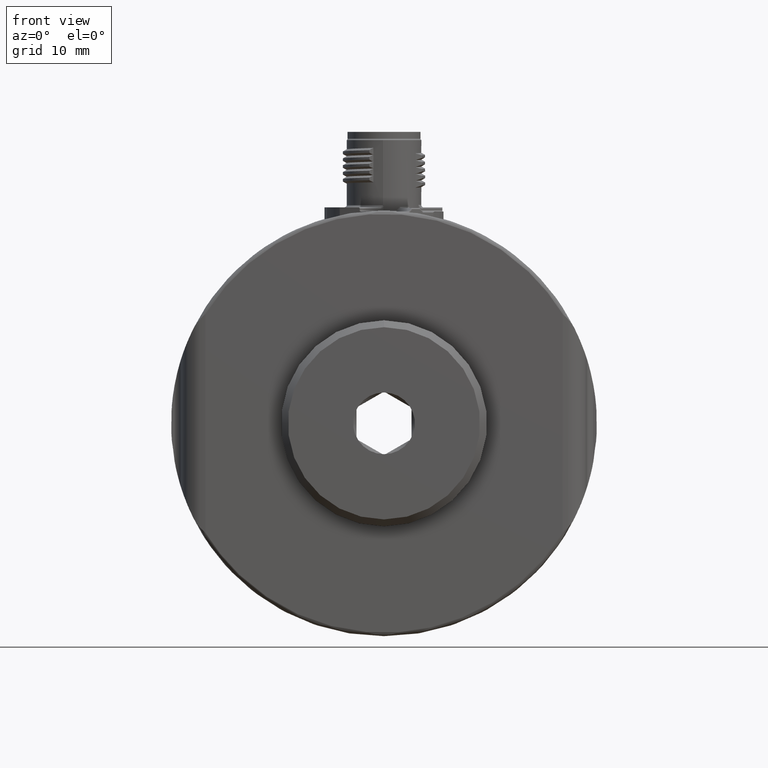
[diagram: clean part render]
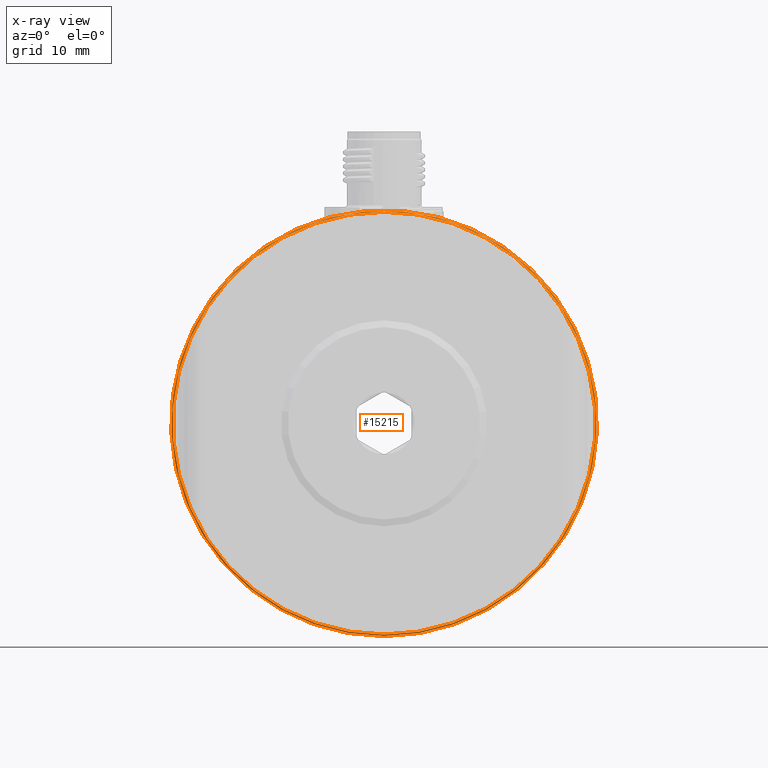
[diagram: x-ray — body ghosted, one internal face saturated and labeled with its STEP entity id]
A machine part, front view, then the same camera in x-ray: the body is ghosted and one INTERNAL B-rep face — a face not visible from any outside direction — is saturated and labeled: STEP entity #15215.
In plain terms, the highlighted conical surface has half-angle 45 deg.
Its self-contained STEP definition (entity closure, byte-faithful):
#304 = CONICAL_SURFACE ( 'NONE', #15305, 31.00000000000000000, 0.7853981633974396193 ) ;
#468 = DIRECTION ( 'NONE',  ( -3.333316502533546444E-16, 1.000000000000000000, 5.517171690293078260E-17 ) ) ;
#572 = ORIENTED_EDGE ( 'NONE', *, *, #5956, .F. ) ;
#1269 = DIRECTION ( 'NONE',  ( -5.551115123125780237E-17, 0.000000000000000000, -1.000000000000000000 ) ) ;
#1348 = EDGE_LOOP ( 'NONE', ( #572 ) ) ;
#1879 = FACE_BOUND ( 'NONE', #16544, .T. ) ;
#5121 = CARTESIAN_POINT ( 'NONE',  ( 3.372724370902904661E-15, 29.19999999999999218, -31.00000000000000000 ) ) ;
#5201 = DIRECTION ( 'NONE',  ( 0.000000000000000000, 0.000000000000000000, 1.000000000000000000 ) ) ;
#5401 = VERTEX_POINT ( 'NONE', #5121 ) ;
#5546 = AXIS2_PLACEMENT_3D ( 'NONE', #13941, #14139, #1269 ) ;
#5577 = DIRECTION ( 'NONE',  ( 0.000000000000000000, 1.000000000000000000, 0.000000000000000000 ) ) ;
#5956 = EDGE_CURVE ( 'NONE', #5401, #5401, #7935, .T. ) ;
#6199 = DIRECTION ( 'NONE',  ( -5.551115123125780237E-17, 0.000000000000000000, -1.000000000000000000 ) ) ;
#7935 = CIRCLE ( 'NONE', #5546, 31.00000000000000000 ) ;
#9457 = ORIENTED_EDGE ( 'NONE', *, *, #9950, .T. ) ;
#9706 = CARTESIAN_POINT ( 'NONE',  ( 5.093570059071896115E-15, 29.00000000000000000, 9.225568020631642609E-15 ) ) ;
#9950 = EDGE_CURVE ( 'NONE', #16861, #16861, #17016, .T. ) ;
#10117 = AXIS2_PLACEMENT_3D ( 'NONE', #9706, #5577, #5201 ) ;
#13343 = FACE_OUTER_BOUND ( 'NONE', #1348, .T. ) ;
#13941 = CARTESIAN_POINT ( 'NONE',  ( 5.093570059071896115E-15, 29.19999999999999218, -1.113153019191396078E-15 ) ) ;
#14139 = DIRECTION ( 'NONE',  ( -3.333316502533546444E-16, 1.000000000000000000, 5.517171690293078260E-17 ) ) ;
#14476 = CARTESIAN_POINT ( 'NONE',  ( 5.093570059071896115E-15, 29.19999999999999218, -1.113153019191396078E-15 ) ) ;
#14998 = CARTESIAN_POINT ( 'NONE',  ( 5.093570059071896115E-15, 29.00000000000000000, 30.80000000000001847 ) ) ;
#15215 = ADVANCED_FACE ( 'NONE', ( #1879, #13343 ), #304, .T. ) ;
#15305 = AXIS2_PLACEMENT_3D ( 'NONE', #14476, #468, #6199 ) ;
#16544 = EDGE_LOOP ( 'NONE', ( #9457 ) ) ;
#16861 = VERTEX_POINT ( 'NONE', #14998 ) ;
#17016 = CIRCLE ( 'NONE', #10117, 30.80000000000000782 ) ;